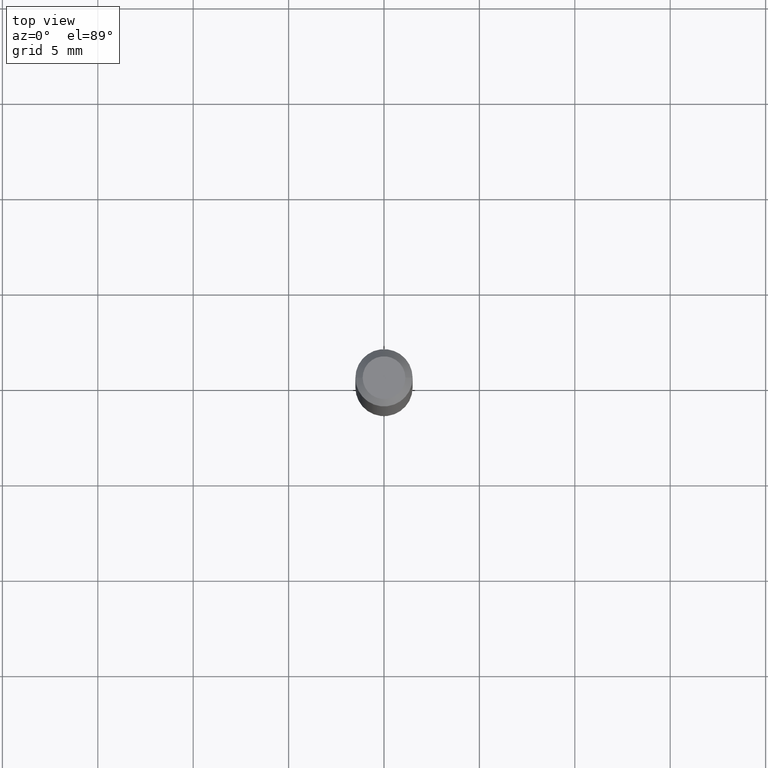
[diagram: clean part render]
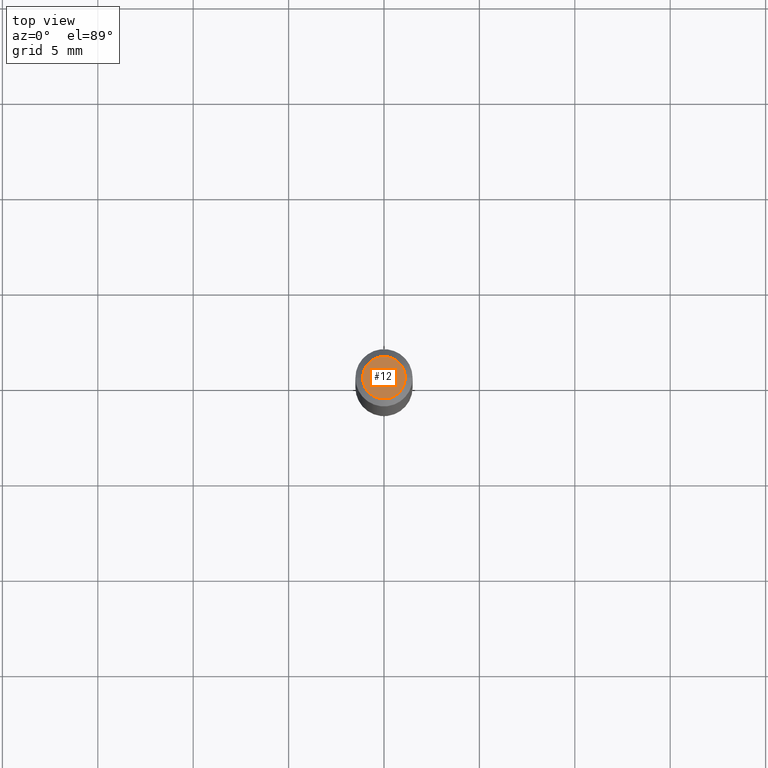
[diagram: same view with one face highlighted and labeled with its STEP entity id]
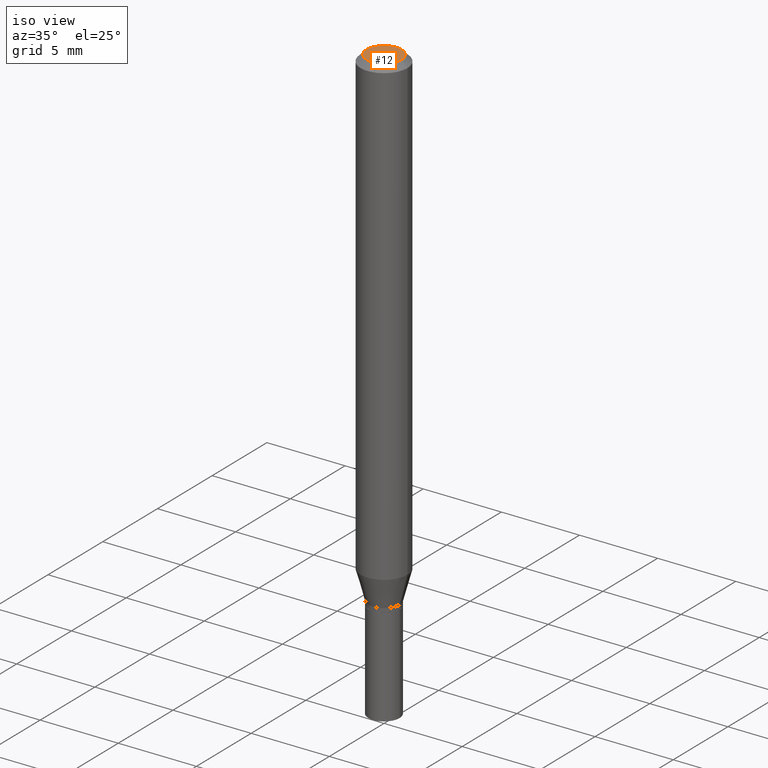
[diagram: same view with one face highlighted and labeled with its STEP entity id]
A machine part, top view. The second image highlights one B-rep face of the part: STEP entity #12.
A second angle (iso view) of the same face is appended — the face is thin or edge-on in the first view.
In plain terms, the highlighted planar face has unit normal (0, -0, -1).
Its self-contained STEP definition (entity closure, byte-faithful):
#12 = ADVANCED_FACE ( 'NONE', ( #151 ), #179, .F. ) ;
#59 = CARTESIAN_POINT ( 'NONE',  ( -8.641182519006289553E-45, 1.233731848647591164E-30, 3.533548453838711334E-16 ) ) ;
#65 = CARTESIAN_POINT ( 'NONE',  ( -0.04404999999999999888, 3.337856159934041534E-16, 3.533548453838689148E-16 ) ) ;
#99 = AXIS2_PLACEMENT_3D ( 'NONE', #59, #197, #342 ) ;
#101 = DIRECTION ( 'NONE',  ( -2.445468806185136597E-29, 3.491481338843145583E-15, 1.000000000000000000 ) ) ;
#105 = CIRCLE ( 'NONE', #246, 0.04404999999999999888 ) ;
#108 = ORIENTED_EDGE ( 'NONE', *, *, #164, .T. ) ;
#115 = DIRECTION ( 'NONE',  ( -1.000000000000000000, 6.982962677686265922E-15, -4.876176775795935793E-29 ) ) ;
#128 = VERTEX_POINT ( 'NONE', #65 ) ;
#151 = FACE_OUTER_BOUND ( 'NONE', #319, .T. ) ;
#158 = AXIS2_PLACEMENT_3D ( 'NONE', #327, #441, #115 ) ;
#161 = EDGE_CURVE ( 'NONE', #128, #365, #105, .T. ) ;
#164 = EDGE_CURVE ( 'NONE', #365, #128, #236, .T. ) ;
#166 = CARTESIAN_POINT ( 'NONE',  ( -8.641182519006289553E-45, 1.233731848647591164E-30, 3.533548453838711334E-16 ) ) ;
#179 = PLANE ( 'NONE',  #158 ) ;
#197 = DIRECTION ( 'NONE',  ( -2.445468806185136597E-29, 3.491481338843145583E-15, 1.000000000000000000 ) ) ;
#199 = DIRECTION ( 'NONE',  ( 1.000000000000000000, -6.982962677686265922E-15, 4.819687581474398999E-29 ) ) ;
#207 = ORIENTED_EDGE ( 'NONE', *, *, #161, .T. ) ;
#236 = CIRCLE ( 'NONE', #99, 0.04404999999999999888 ) ;
#246 = AXIS2_PLACEMENT_3D ( 'NONE', #166, #101, #199 ) ;
#319 = EDGE_LOOP ( 'NONE', ( #207, #108 ) ) ;
#327 = CARTESIAN_POINT ( 'NONE',  ( 3.075995059520799729E-16, 0.04404999999999999888, 2.287766971589501637E-17 ) ) ;
#342 = DIRECTION ( 'NONE',  ( 1.000000000000000000, -6.982962677686265922E-15, 4.819687581474398999E-29 ) ) ;
#365 = VERTEX_POINT ( 'NONE', #401 ) ;
#401 = CARTESIAN_POINT ( 'NONE',  ( 0.04404999999999999888, -3.798447818264455642E-16, 3.533548453838735986E-16 ) ) ;
#441 = DIRECTION ( 'NONE',  ( 2.438088387897960049E-29, -3.491481338843145188E-15, -1.000000000000000000 ) ) ;